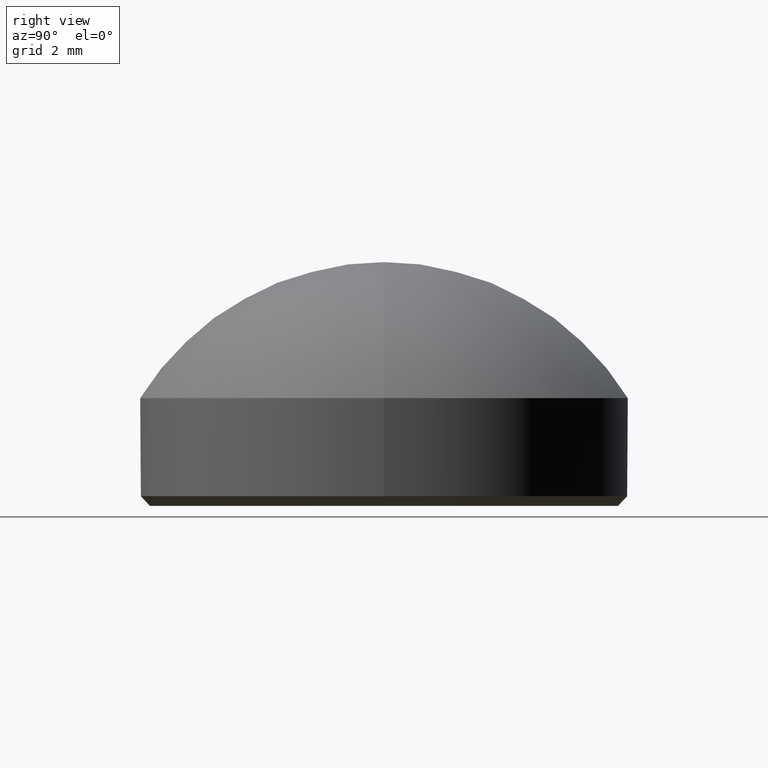
[diagram: clean part render]
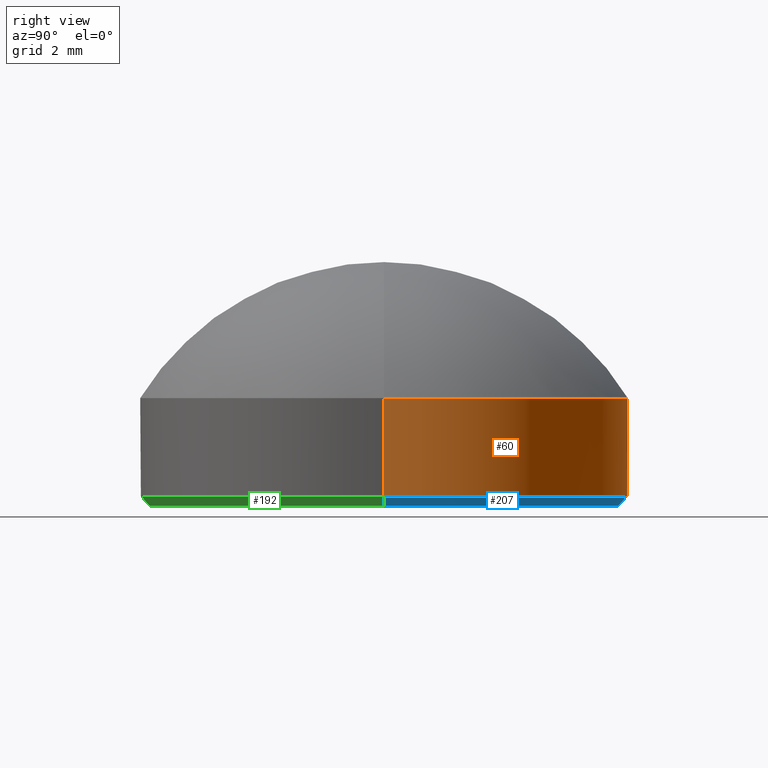
[diagram: same view with three faces highlighted in distinct colors, each labeled with its STEP entity id]
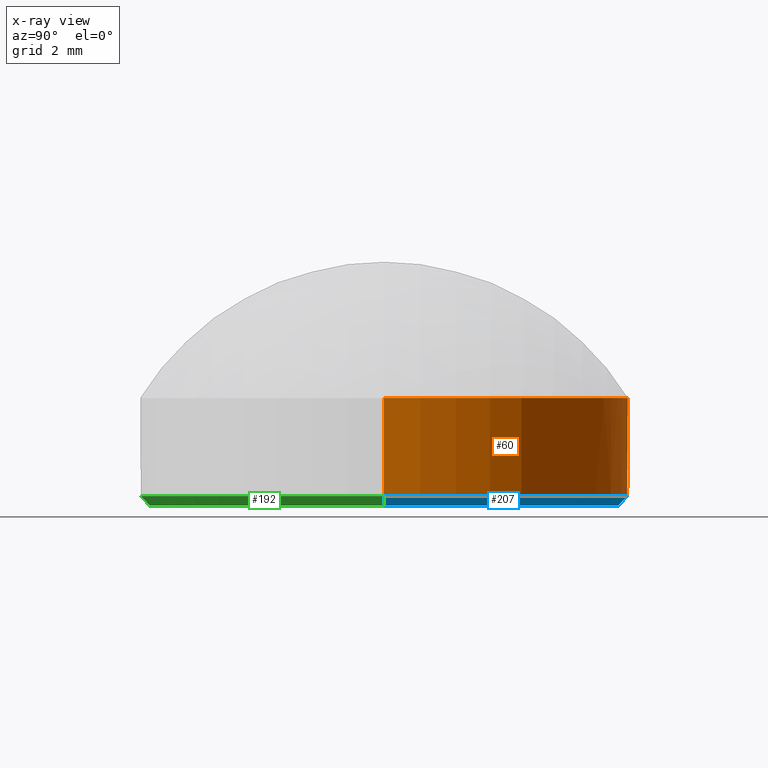
[diagram: x-ray of the same camera — body ghosted, the three highlighted faces saturated]
A machine part, right view with three faces highlighted in distinct colors.
The next image is the same camera in x-ray (body ghosted, the three faces saturated) — at least one of them is partly hidden behind the body in this view.
Their STEP definitions:

[orange] entity #60 — the highlighted cylindrical surface (partial cylindrical patch) has radius 5 mm, axis along (-0, -0, -1).
#1 = DIRECTION ( 'NONE',  ( -0.000000000000000000, -0.000000000000000000, 1.000000000000000000 ) ) ;
#2 = EDGE_CURVE ( 'NONE', #148, #28, #109, .T. ) ;
#3 = AXIS2_PLACEMENT_3D ( 'NONE', #214, #1, #140 ) ;
#7 = CARTESIAN_POINT ( 'NONE',  ( -5.000000000000000000, 0.000000000000000000, 2.209999999999999964 ) ) ;
#28 = VERTEX_POINT ( 'NONE', #121 ) ;
#32 = VERTEX_POINT ( 'NONE', #123 ) ;
#39 = EDGE_CURVE ( 'NONE', #28, #32, #191, .T. ) ;
#42 = CYLINDRICAL_SURFACE ( 'NONE', #139, 5.000000000000000000 ) ;
#60 = ADVANCED_FACE ( 'NONE', ( #77 ), #42, .T. ) ;
#77 = FACE_OUTER_BOUND ( 'NONE', #144, .T. ) ;
#79 = CARTESIAN_POINT ( 'NONE',  ( -5.000000000000000000, 0.000000000000000000, 2.209999999999999964 ) ) ;
#82 = CARTESIAN_POINT ( 'NONE',  ( 5.000000000000000000, 6.123233995736766282E-16, 2.209999999999999964 ) ) ;
#88 = ORIENTED_EDGE ( 'NONE', *, *, #205, .F. ) ;
#96 = VECTOR ( 'NONE', #177, 1000.000000000000000 ) ;
#100 = CARTESIAN_POINT ( 'NONE',  ( 0.000000000000000000, 0.000000000000000000, 2.209999999999999964 ) ) ;
#104 = VERTEX_POINT ( 'NONE', #79 ) ;
#109 = LINE ( 'NONE', #82, #150 ) ;
#117 = LINE ( 'NONE', #7, #96 ) ;
#118 = CARTESIAN_POINT ( 'NONE',  ( 5.000000000000000000, 6.123233995736766282E-16, 2.209999999999999964 ) ) ;
#121 = CARTESIAN_POINT ( 'NONE',  ( 5.000000000000000000, 6.123233995736766282E-16, 0.1999999999999987899 ) ) ;
#123 = CARTESIAN_POINT ( 'NONE',  ( -5.000000000000000000, 0.000000000000000000, 0.1999999999999987899 ) ) ;
#136 = AXIS2_PLACEMENT_3D ( 'NONE', #100, #161, #158 ) ;
#139 = AXIS2_PLACEMENT_3D ( 'NONE', #198, #203, #173 ) ;
#140 = DIRECTION ( 'NONE',  ( 1.000000000000000000, 0.000000000000000000, 0.000000000000000000 ) ) ;
#141 = DIRECTION ( 'NONE',  ( -0.000000000000000000, -0.000000000000000000, -1.000000000000000000 ) ) ;
#144 = EDGE_LOOP ( 'NONE', ( #88, #210, #147, #162 ) ) ;
#147 = ORIENTED_EDGE ( 'NONE', *, *, #39, .T. ) ;
#148 = VERTEX_POINT ( 'NONE', #118 ) ;
#150 = VECTOR ( 'NONE', #141, 1000.000000000000000 ) ;
#157 = CIRCLE ( 'NONE', #136, 5.000000000000000000 ) ;
#158 = DIRECTION ( 'NONE',  ( 1.000000000000000000, 0.000000000000000000, 0.000000000000000000 ) ) ;
#161 = DIRECTION ( 'NONE',  ( 0.000000000000000000, 0.000000000000000000, 1.000000000000000000 ) ) ;
#162 = ORIENTED_EDGE ( 'NONE', *, *, #176, .F. ) ;
#173 = DIRECTION ( 'NONE',  ( -1.000000000000000000, 0.000000000000000000, 0.000000000000000000 ) ) ;
#176 = EDGE_CURVE ( 'NONE', #104, #32, #117, .T. ) ;
#177 = DIRECTION ( 'NONE',  ( -0.000000000000000000, -0.000000000000000000, -1.000000000000000000 ) ) ;
#191 = CIRCLE ( 'NONE', #3, 5.000000000000000000 ) ;
#198 = CARTESIAN_POINT ( 'NONE',  ( 0.000000000000000000, 0.000000000000000000, 2.209999999999999964 ) ) ;
#203 = DIRECTION ( 'NONE',  ( -0.000000000000000000, -0.000000000000000000, -1.000000000000000000 ) ) ;
#205 = EDGE_CURVE ( 'NONE', #148, #104, #157, .T. ) ;
#210 = ORIENTED_EDGE ( 'NONE', *, *, #2, .T. ) ;
#214 = CARTESIAN_POINT ( 'NONE',  ( 0.000000000000000000, 0.000000000000000000, 0.1999999999999987899 ) ) ;

[blue] entity #207 — the highlighted conical surface has half-angle 45 deg.
#1 = DIRECTION ( 'NONE',  ( -0.000000000000000000, -0.000000000000000000, 1.000000000000000000 ) ) ;
#3 = AXIS2_PLACEMENT_3D ( 'NONE', #214, #1, #140 ) ;
#14 = CARTESIAN_POINT ( 'NONE',  ( 0.000000000000000000, 0.000000000000000000, 0.000000000000000000 ) ) ;
#16 = AXIS2_PLACEMENT_3D ( 'NONE', #26, #189, #126 ) ;
#26 = CARTESIAN_POINT ( 'NONE',  ( 0.000000000000000000, 0.000000000000000000, 0.1999999999999987899 ) ) ;
#28 = VERTEX_POINT ( 'NONE', #121 ) ;
#32 = VERTEX_POINT ( 'NONE', #123 ) ;
#39 = EDGE_CURVE ( 'NONE', #28, #32, #191, .T. ) ;
#50 = EDGE_CURVE ( 'NONE', #212, #76, #167, .T. ) ;
#61 = LINE ( 'NONE', #94, #115 ) ;
#69 = LINE ( 'NONE', #98, #108 ) ;
#71 = CONICAL_SURFACE ( 'NONE', #16, 5.000000000000000000, 0.7853981633974504994 ) ;
#72 = EDGE_CURVE ( 'NONE', #76, #28, #61, .T. ) ;
#76 = VERTEX_POINT ( 'NONE', #200 ) ;
#83 = AXIS2_PLACEMENT_3D ( 'NONE', #14, #187, #138 ) ;
#87 = CARTESIAN_POINT ( 'NONE',  ( -4.800000000000000711, 6.000769315822031726E-16, 0.000000000000000000 ) ) ;
#90 = ORIENTED_EDGE ( 'NONE', *, *, #72, .F. ) ;
#91 = ORIENTED_EDGE ( 'NONE', *, *, #50, .F. ) ;
#94 = CARTESIAN_POINT ( 'NONE',  ( 5.000000000000000000, 0.000000000000000000, 0.1999999999999987899 ) ) ;
#98 = CARTESIAN_POINT ( 'NONE',  ( -5.000000000000000000, 6.123233995736766282E-16, 0.1999999999999987899 ) ) ;
#108 = VECTOR ( 'NONE', #127, 1000.000000000000114 ) ;
#115 = VECTOR ( 'NONE', #172, 1000.000000000000114 ) ;
#119 = FACE_OUTER_BOUND ( 'NONE', #120, .T. ) ;
#120 = EDGE_LOOP ( 'NONE', ( #91, #154, #131, #90 ) ) ;
#121 = CARTESIAN_POINT ( 'NONE',  ( 5.000000000000000000, 6.123233995736766282E-16, 0.1999999999999987899 ) ) ;
#123 = CARTESIAN_POINT ( 'NONE',  ( -5.000000000000000000, 0.000000000000000000, 0.1999999999999987899 ) ) ;
#126 = DIRECTION ( 'NONE',  ( 1.000000000000000000, 0.000000000000000000, 0.000000000000000000 ) ) ;
#127 = DIRECTION ( 'NONE',  ( -0.7071067811865490160, 8.659560562354953812E-17, 0.7071067811865460184 ) ) ;
#131 = ORIENTED_EDGE ( 'NONE', *, *, #39, .F. ) ;
#138 = DIRECTION ( 'NONE',  ( 1.000000000000000000, 0.000000000000000000, 0.000000000000000000 ) ) ;
#140 = DIRECTION ( 'NONE',  ( 1.000000000000000000, 0.000000000000000000, 0.000000000000000000 ) ) ;
#154 = ORIENTED_EDGE ( 'NONE', *, *, #199, .T. ) ;
#167 = CIRCLE ( 'NONE', #83, 4.800000000000000711 ) ;
#172 = DIRECTION ( 'NONE',  ( 0.7071067811865490160, 0.000000000000000000, 0.7071067811865460184 ) ) ;
#187 = DIRECTION ( 'NONE',  ( -0.000000000000000000, -0.000000000000000000, -1.000000000000000000 ) ) ;
#189 = DIRECTION ( 'NONE',  ( -0.000000000000000000, -0.000000000000000000, 1.000000000000000000 ) ) ;
#191 = CIRCLE ( 'NONE', #3, 5.000000000000000000 ) ;
#199 = EDGE_CURVE ( 'NONE', #212, #32, #69, .T. ) ;
#200 = CARTESIAN_POINT ( 'NONE',  ( 4.800000000000000711, 0.000000000000000000, 0.000000000000000000 ) ) ;
#207 = ADVANCED_FACE ( 'NONE', ( #119 ), #71, .T. ) ;
#212 = VERTEX_POINT ( 'NONE', #87 ) ;
#214 = CARTESIAN_POINT ( 'NONE',  ( 0.000000000000000000, 0.000000000000000000, 0.1999999999999987899 ) ) ;

[green] entity #192 — the highlighted conical surface has half-angle 45 deg.
#5 = EDGE_CURVE ( 'NONE', #32, #28, #160, .T. ) ;
#8 = AXIS2_PLACEMENT_3D ( 'NONE', #84, #174, #85 ) ;
#10 = EDGE_LOOP ( 'NONE', ( #103, #213, #146, #179 ) ) ;
#19 = FACE_OUTER_BOUND ( 'NONE', #10, .T. ) ;
#28 = VERTEX_POINT ( 'NONE', #121 ) ;
#32 = VERTEX_POINT ( 'NONE', #123 ) ;
#35 = DIRECTION ( 'NONE',  ( -0.000000000000000000, -0.000000000000000000, -1.000000000000000000 ) ) ;
#36 = CIRCLE ( 'NONE', #128, 4.800000000000000711 ) ;
#38 = DIRECTION ( 'NONE',  ( -0.000000000000000000, -0.000000000000000000, 1.000000000000000000 ) ) ;
#48 = AXIS2_PLACEMENT_3D ( 'NONE', #59, #38, #155 ) ;
#58 = CONICAL_SURFACE ( 'NONE', #8, 5.000000000000000000, 0.7853981633974504994 ) ;
#59 = CARTESIAN_POINT ( 'NONE',  ( 0.000000000000000000, 0.000000000000000000, 0.1999999999999987899 ) ) ;
#61 = LINE ( 'NONE', #94, #115 ) ;
#68 = EDGE_CURVE ( 'NONE', #76, #212, #36, .T. ) ;
#69 = LINE ( 'NONE', #98, #108 ) ;
#72 = EDGE_CURVE ( 'NONE', #76, #28, #61, .T. ) ;
#76 = VERTEX_POINT ( 'NONE', #200 ) ;
#84 = CARTESIAN_POINT ( 'NONE',  ( 0.000000000000000000, 0.000000000000000000, 0.1999999999999987899 ) ) ;
#85 = DIRECTION ( 'NONE',  ( 1.000000000000000000, 0.000000000000000000, 0.000000000000000000 ) ) ;
#87 = CARTESIAN_POINT ( 'NONE',  ( -4.800000000000000711, 6.000769315822031726E-16, 0.000000000000000000 ) ) ;
#93 = DIRECTION ( 'NONE',  ( 1.000000000000000000, 0.000000000000000000, 0.000000000000000000 ) ) ;
#94 = CARTESIAN_POINT ( 'NONE',  ( 5.000000000000000000, 0.000000000000000000, 0.1999999999999987899 ) ) ;
#98 = CARTESIAN_POINT ( 'NONE',  ( -5.000000000000000000, 6.123233995736766282E-16, 0.1999999999999987899 ) ) ;
#103 = ORIENTED_EDGE ( 'NONE', *, *, #199, .F. ) ;
#108 = VECTOR ( 'NONE', #127, 1000.000000000000114 ) ;
#115 = VECTOR ( 'NONE', #172, 1000.000000000000114 ) ;
#121 = CARTESIAN_POINT ( 'NONE',  ( 5.000000000000000000, 6.123233995736766282E-16, 0.1999999999999987899 ) ) ;
#123 = CARTESIAN_POINT ( 'NONE',  ( -5.000000000000000000, 0.000000000000000000, 0.1999999999999987899 ) ) ;
#127 = DIRECTION ( 'NONE',  ( -0.7071067811865490160, 8.659560562354953812E-17, 0.7071067811865460184 ) ) ;
#128 = AXIS2_PLACEMENT_3D ( 'NONE', #215, #35, #93 ) ;
#146 = ORIENTED_EDGE ( 'NONE', *, *, #72, .T. ) ;
#155 = DIRECTION ( 'NONE',  ( 1.000000000000000000, 0.000000000000000000, 0.000000000000000000 ) ) ;
#160 = CIRCLE ( 'NONE', #48, 5.000000000000000000 ) ;
#172 = DIRECTION ( 'NONE',  ( 0.7071067811865490160, 0.000000000000000000, 0.7071067811865460184 ) ) ;
#174 = DIRECTION ( 'NONE',  ( -0.000000000000000000, -0.000000000000000000, 1.000000000000000000 ) ) ;
#179 = ORIENTED_EDGE ( 'NONE', *, *, #5, .F. ) ;
#192 = ADVANCED_FACE ( 'NONE', ( #19 ), #58, .T. ) ;
#199 = EDGE_CURVE ( 'NONE', #212, #32, #69, .T. ) ;
#200 = CARTESIAN_POINT ( 'NONE',  ( 4.800000000000000711, 0.000000000000000000, 0.000000000000000000 ) ) ;
#212 = VERTEX_POINT ( 'NONE', #87 ) ;
#213 = ORIENTED_EDGE ( 'NONE', *, *, #68, .F. ) ;
#215 = CARTESIAN_POINT ( 'NONE',  ( 0.000000000000000000, 0.000000000000000000, 0.000000000000000000 ) ) ;